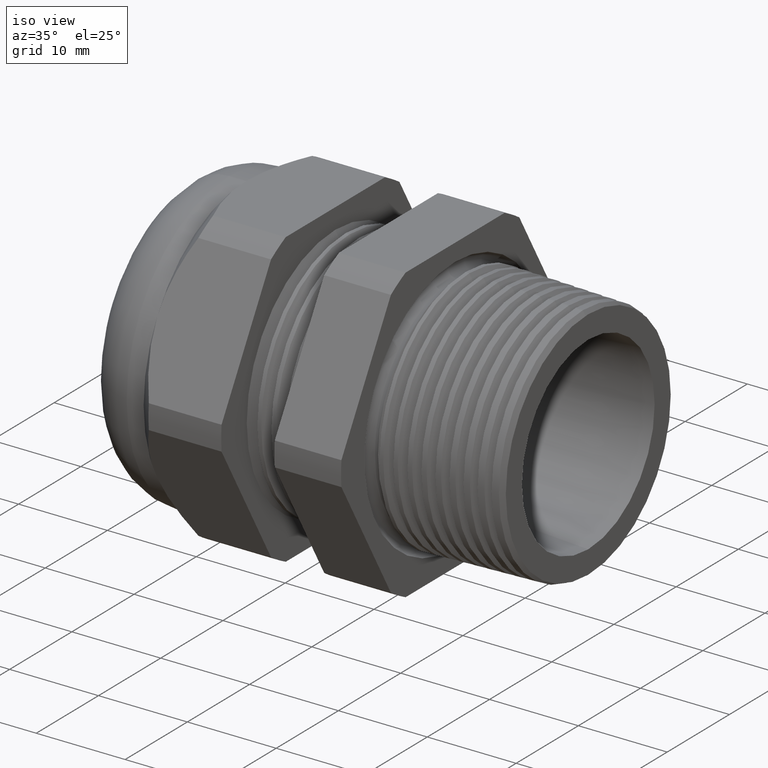
[diagram: clean part render]
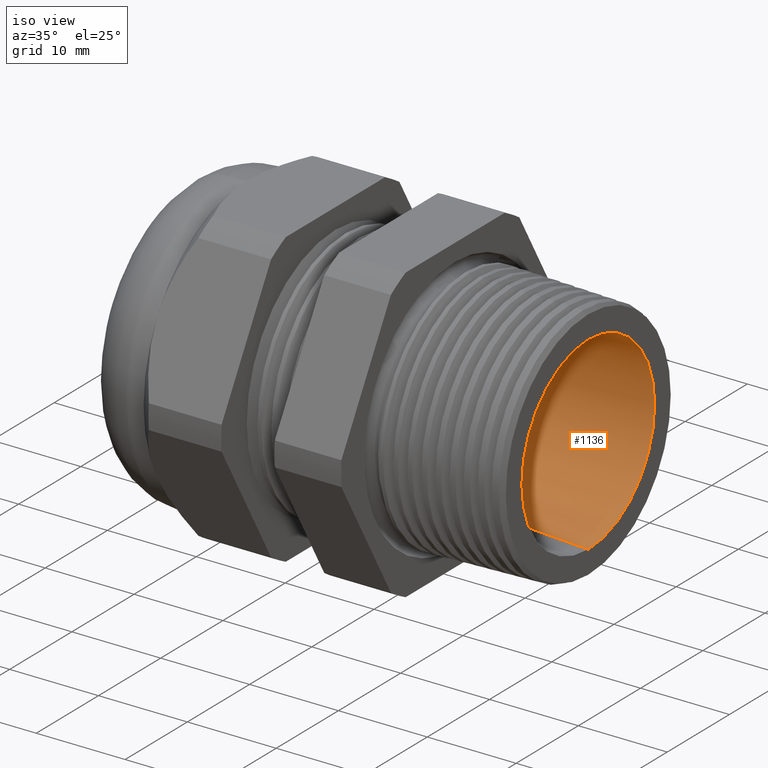
[diagram: same view with one face highlighted and labeled with its STEP entity id]
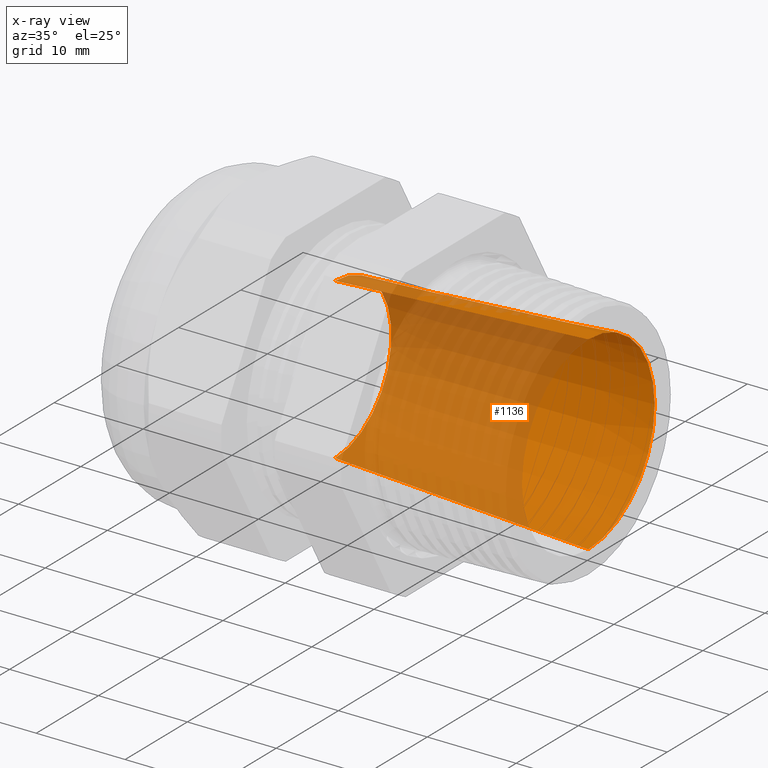
[diagram: x-ray of the same camera — body ghosted, the highlighted face saturated]
A machine part, iso view. The second image highlights one B-rep face of the part: STEP entity #1136.
The next image is the same camera in x-ray: the body ghosted, the highlighted face saturated — about 59% of this face is hidden behind the body in this view.
In plain terms, the highlighted conical surface has half-angle 3.318 deg.
Its self-contained STEP definition (entity closure, byte-faithful):
#100 = VERTEX_POINT ( 'NONE', #1467 ) ;
#103 = VERTEX_POINT ( 'NONE', #1466 ) ;
#105 = VERTEX_POINT ( 'NONE', #1465 ) ;
#107 = EDGE_CURVE ( 'NONE', #105, #103, #1459, .T. ) ;
#109 = EDGE_CURVE ( 'NONE', #100, #110, #1455, .T. ) ;
#110 = VERTEX_POINT ( 'NONE', #1451 ) ;
#1134 = EDGE_CURVE ( 'NONE', #103, #110, #3001, .T. ) ;
#1136 = ADVANCED_FACE ( 'NONE', ( #2996 ), #2995, .F. ) ;
#1137 = EDGE_LOOP ( 'NONE', ( #1138, #1139, #1190, #1191 ) ) ;
#1138 = ORIENTED_EDGE ( 'NONE', *, *, #109, .F. ) ;
#1139 = ORIENTED_EDGE ( 'NONE', *, *, #1140, .F. ) ;
#1140 = EDGE_CURVE ( 'NONE', #105, #100, #3055, .T. ) ;
#1190 = ORIENTED_EDGE ( 'NONE', *, *, #107, .T. ) ;
#1191 = ORIENTED_EDGE ( 'NONE', *, *, #1134, .T. ) ;
#1451 = CARTESIAN_POINT ( 'NONE',  ( 0.2800000000000000300, 5.143516556418884400E-017, 0.4200000000000000400 ) ) ;
#1452 = DIRECTION ( 'NONE',  ( 0.9983232288190274600, 7.088928901388455400E-018, 0.05788549732317958100 ) ) ;
#1453 = VECTOR ( 'NONE', #1452, 39.37007874015748100 ) ;
#1454 = CARTESIAN_POINT ( 'NONE',  ( -0.8410236220472443500, 4.347496136973103500E-017, 0.3549999999999999800 ) ) ;
#1455 = LINE ( 'NONE', #1454, #1453 ) ;
#1456 = DIRECTION ( 'NONE',  ( 0.9983232288190274600, 0.0000000000000000000, -0.05788549732317958100 ) ) ;
#1457 = VECTOR ( 'NONE', #1456, 39.37007874015748100 ) ;
#1458 = CARTESIAN_POINT ( 'NONE',  ( -0.8410236220472443500, 0.0000000000000000000, -0.3549999999999999800 ) ) ;
#1459 = LINE ( 'NONE', #1458, #1457 ) ;
#1465 = CARTESIAN_POINT ( 'NONE',  ( -0.8410236220472443500, 0.0000000000000000000, -0.3549999999999999800 ) ) ;
#1466 = CARTESIAN_POINT ( 'NONE',  ( 0.2800000000000000300, 0.0000000000000000000, -0.4200000000000000400 ) ) ;
#1467 = CARTESIAN_POINT ( 'NONE',  ( -0.8410236220472443500, 4.745506346695993600E-017, 0.3549999999999999800 ) ) ;
#2990 = DIRECTION ( 'NONE',  ( 0.0000000000000000000, 0.0000000000000000000, -1.000000000000000000 ) ) ;
#2991 = DIRECTION ( 'NONE',  ( 1.000000000000000000, 0.0000000000000000000, 0.0000000000000000000 ) ) ;
#2992 = CARTESIAN_POINT ( 'NONE',  ( -0.8410236220472443500, 0.0000000000000000000, 0.0000000000000000000 ) ) ;
#2993 = AXIS2_PLACEMENT_3D ( 'NONE', #2992, #2991, #2990 ) ;
#2994 = CARTESIAN_POINT ( 'NONE',  ( -0.8410236220472443500, 0.0000000000000000000, 0.0000000000000000000 ) ) ;
#2995 = CONICAL_SURFACE ( 'NONE', #2993, 0.3549999999999999800, 0.05791787261650645200 ) ;
#2996 = FACE_OUTER_BOUND ( 'NONE', #1137, .T. ) ;
#2997 = DIRECTION ( 'NONE',  ( 0.0000000000000000000, 0.0000000000000000000, -1.000000000000000000 ) ) ;
#2998 = DIRECTION ( 'NONE',  ( 1.000000000000000000, 0.0000000000000000000, 0.0000000000000000000 ) ) ;
#2999 = CARTESIAN_POINT ( 'NONE',  ( 0.2800000000000000300, 0.0000000000000000000, 0.0000000000000000000 ) ) ;
#3000 = AXIS2_PLACEMENT_3D ( 'NONE', #2999, #2998, #2997 ) ;
#3001 = CIRCLE ( 'NONE', #3000, 0.4200000000000000400 ) ;
#3052 = DIRECTION ( 'NONE',  ( 0.0000000000000000000, 0.0000000000000000000, -1.000000000000000000 ) ) ;
#3053 = DIRECTION ( 'NONE',  ( 1.000000000000000000, 0.0000000000000000000, 0.0000000000000000000 ) ) ;
#3054 = AXIS2_PLACEMENT_3D ( 'NONE', #2994, #3053, #3052 ) ;
#3055 = CIRCLE ( 'NONE', #3054, 0.3549999999999999800 ) ;